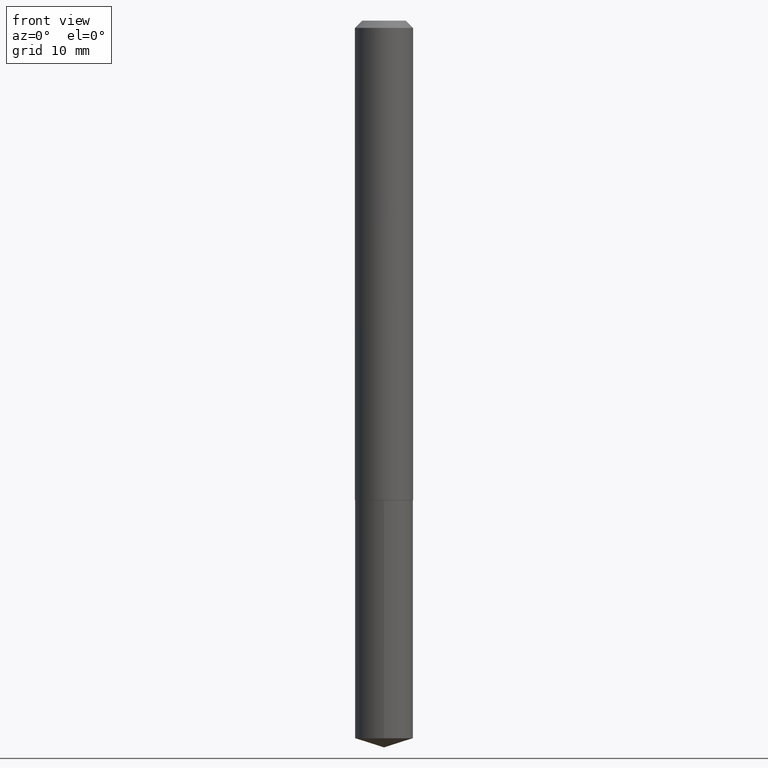
[diagram: clean part render]
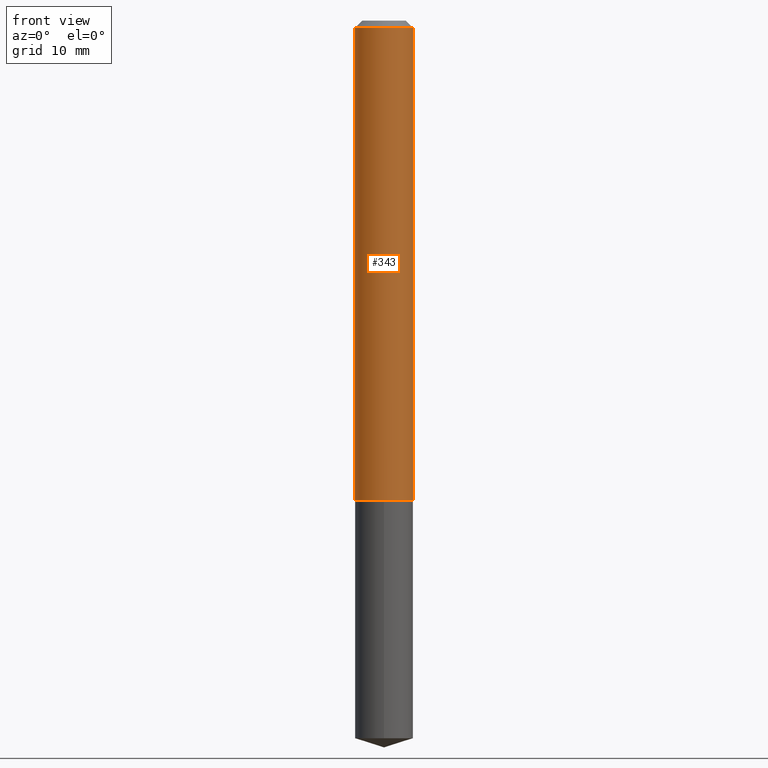
[diagram: same view with one face highlighted and labeled with its STEP entity id]
A machine part, front view. The second image highlights one B-rep face of the part: STEP entity #343.
In plain terms, the highlighted cylindrical surface (edge-blend (fillet) strip) has radius 3.175 mm, axis along (-0, 0, 1).
Its self-contained STEP definition (entity closure, byte-faithful):
#26 = CARTESIAN_POINT ( 'NONE',  ( 7.642090019328604414E-31, -1.091087918388490513E-16, -0.03125000000000021511 ) ) ;
#37 = DIRECTION ( 'NONE',  ( -2.445468806185136597E-29, 3.491481338843145583E-15, 1.000000000000000000 ) ) ;
#41 = LINE ( 'NONE', #367, #114 ) ;
#66 = CARTESIAN_POINT ( 'NONE',  ( -0.1250000000000000000, -2.766093236566581277E-15, -0.03125000000000021511 ) ) ;
#67 = CARTESIAN_POINT ( 'NONE',  ( 0.1250000000000000000, -9.819791265496324395E-16, -0.03125000000000021511 ) ) ;
#69 = VERTEX_POINT ( 'NONE', #115 ) ;
#73 = LINE ( 'NONE', #92, #151 ) ;
#92 = CARTESIAN_POINT ( 'NONE',  ( 0.1250000000000001110, -8.728703347107841277E-16, 6.095220969744924646E-30 ) ) ;
#96 = DIRECTION ( 'NONE',  ( 1.000000000000000000, -6.982962677686266711E-15, 4.876176775795935232E-29 ) ) ;
#100 = CARTESIAN_POINT ( 'NONE',  ( -0.1250000000000002220, -6.311256100994441053E-15, -2.062000000000000277 ) ) ;
#114 = VECTOR ( 'NONE', #184, 39.37007874015748143 ) ;
#115 = CARTESIAN_POINT ( 'NONE',  ( 0.1250000000000002220, -8.072304855405352780E-15, -2.062000000000000277 ) ) ;
#121 = CYLINDRICAL_SURFACE ( 'NONE', #358, 0.1250000000000001110 ) ;
#126 = DIRECTION ( 'NONE',  ( -2.445468806185136597E-29, 3.491481338843145583E-15, 1.000000000000000000 ) ) ;
#140 = CIRCLE ( 'NONE', #385, 0.1250000000000000000 ) ;
#151 = VECTOR ( 'NONE', #364, 39.37007874015748143 ) ;
#171 = DIRECTION ( 'NONE',  ( 1.000000000000000000, -6.982962677686266711E-15, 0.000000000000000000 ) ) ;
#181 = FACE_OUTER_BOUND ( 'NONE', #314, .T. ) ;
#182 = EDGE_CURVE ( 'NONE', #217, #380, #140, .T. ) ;
#184 = DIRECTION ( 'NONE',  ( -2.445468806185136877E-29, 3.491481338843145188E-15, 1.000000000000000000 ) ) ;
#217 = VERTEX_POINT ( 'NONE', #66 ) ;
#234 = ORIENTED_EDGE ( 'NONE', *, *, #182, .F. ) ;
#245 = ORIENTED_EDGE ( 'NONE', *, *, #292, .T. ) ;
#251 = EDGE_CURVE ( 'NONE', #299, #217, #41, .T. ) ;
#254 = CIRCLE ( 'NONE', #306, 0.1250000000000002220 ) ;
#282 = ORIENTED_EDGE ( 'NONE', *, *, #251, .F. ) ;
#292 = EDGE_CURVE ( 'NONE', #69, #380, #73, .T. ) ;
#299 = VERTEX_POINT ( 'NONE', #100 ) ;
#303 = CARTESIAN_POINT ( 'NONE',  ( 0.000000000000000000, 0.000000000000000000, 0.000000000000000000 ) ) ;
#304 = ORIENTED_EDGE ( 'NONE', *, *, #334, .T. ) ;
#306 = AXIS2_PLACEMENT_3D ( 'NONE', #309, #126, #390 ) ;
#309 = CARTESIAN_POINT ( 'NONE',  ( 5.042556678353752550E-29, -7.199434520694567863E-15, -2.062000000000000277 ) ) ;
#314 = EDGE_LOOP ( 'NONE', ( #282, #304, #245, #234 ) ) ;
#327 = DIRECTION ( 'NONE',  ( -2.445468806185136597E-29, 3.491481338843145583E-15, 1.000000000000000000 ) ) ;
#334 = EDGE_CURVE ( 'NONE', #299, #69, #254, .T. ) ;
#343 = ADVANCED_FACE ( 'NONE', ( #181 ), #121, .T. ) ;
#358 = AXIS2_PLACEMENT_3D ( 'NONE', #303, #37, #96 ) ;
#364 = DIRECTION ( 'NONE',  ( -2.445468806185136877E-29, 3.491481338843145188E-15, 1.000000000000000000 ) ) ;
#367 = CARTESIAN_POINT ( 'NONE',  ( -0.1250000000000001110, 8.881784197001260212E-16, -6.148668862818637832E-30 ) ) ;
#380 = VERTEX_POINT ( 'NONE', #67 ) ;
#385 = AXIS2_PLACEMENT_3D ( 'NONE', #26, #327, #171 ) ;
#390 = DIRECTION ( 'NONE',  ( 1.000000000000000000, -6.982962677686265922E-15, 0.000000000000000000 ) ) ;